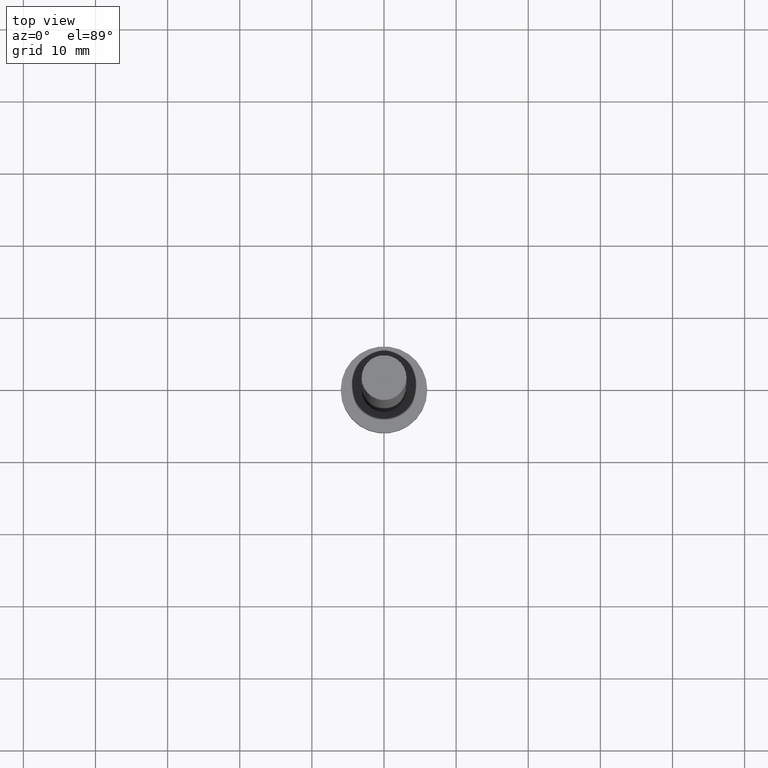
[diagram: clean part render]
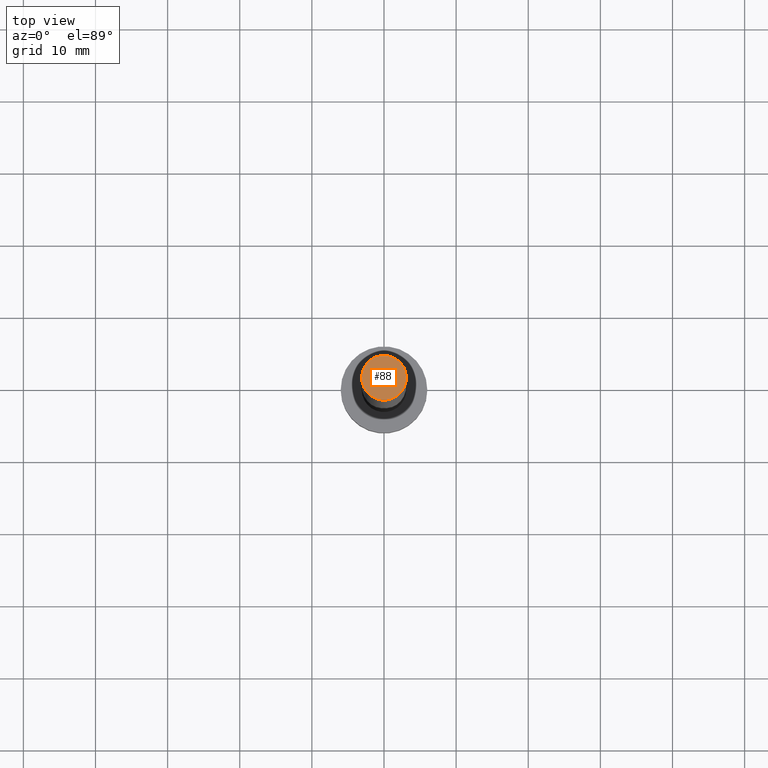
[diagram: same view with one face highlighted and labeled with its STEP entity id]
A machine part, top view. The second image highlights one B-rep face of the part: STEP entity #88.
In plain terms, the highlighted planar face has unit normal (0, 0, 1).
Its self-contained STEP definition (entity closure, byte-faithful):
#5 = AXIS2_PLACEMENT_3D ( 'NONE', #106, #135, #116 ) ;
#13 = PLANE ( 'NONE',  #245 ) ;
#23 = CARTESIAN_POINT ( 'NONE',  ( 3.100000000000000089, 3.796405077356794918E-16, 100.0000000000000000 ) ) ;
#34 = ORIENTED_EDGE ( 'NONE', *, *, #140, .T. ) ;
#69 = FACE_OUTER_BOUND ( 'NONE', #110, .T. ) ;
#76 = CARTESIAN_POINT ( 'NONE',  ( 0.000000000000000000, 0.000000000000000000, 100.0000000000000000 ) ) ;
#86 = VERTEX_POINT ( 'NONE', #250 ) ;
#88 = ADVANCED_FACE ( 'NONE', ( #69 ), #13, .T. ) ;
#103 = CARTESIAN_POINT ( 'NONE',  ( 0.000000000000000000, 0.000000000000000000, 100.0000000000000000 ) ) ;
#106 = CARTESIAN_POINT ( 'NONE',  ( 0.000000000000000000, 0.000000000000000000, 100.0000000000000000 ) ) ;
#109 = DIRECTION ( 'NONE',  ( 0.000000000000000000, 0.000000000000000000, 1.000000000000000000 ) ) ;
#110 = EDGE_LOOP ( 'NONE', ( #138, #34 ) ) ;
#116 = DIRECTION ( 'NONE',  ( 1.000000000000000000, 0.000000000000000000, 0.000000000000000000 ) ) ;
#135 = DIRECTION ( 'NONE',  ( 0.000000000000000000, 0.000000000000000000, 1.000000000000000000 ) ) ;
#138 = ORIENTED_EDGE ( 'NONE', *, *, #223, .T. ) ;
#140 = EDGE_CURVE ( 'NONE', #240, #86, #175, .T. ) ;
#164 = DIRECTION ( 'NONE',  ( 1.000000000000000000, 0.000000000000000000, -0.000000000000000000 ) ) ;
#173 = CIRCLE ( 'NONE', #5, 3.100000000000000089 ) ;
#175 = CIRCLE ( 'NONE', #177, 3.100000000000000089 ) ;
#177 = AXIS2_PLACEMENT_3D ( 'NONE', #76, #109, #184 ) ;
#184 = DIRECTION ( 'NONE',  ( 1.000000000000000000, 0.000000000000000000, 0.000000000000000000 ) ) ;
#223 = EDGE_CURVE ( 'NONE', #86, #240, #173, .T. ) ;
#240 = VERTEX_POINT ( 'NONE', #23 ) ;
#245 = AXIS2_PLACEMENT_3D ( 'NONE', #103, #251, #164 ) ;
#250 = CARTESIAN_POINT ( 'NONE',  ( -3.100000000000000089, 0.000000000000000000, 100.0000000000000000 ) ) ;
#251 = DIRECTION ( 'NONE',  ( 0.000000000000000000, 0.000000000000000000, 1.000000000000000000 ) ) ;